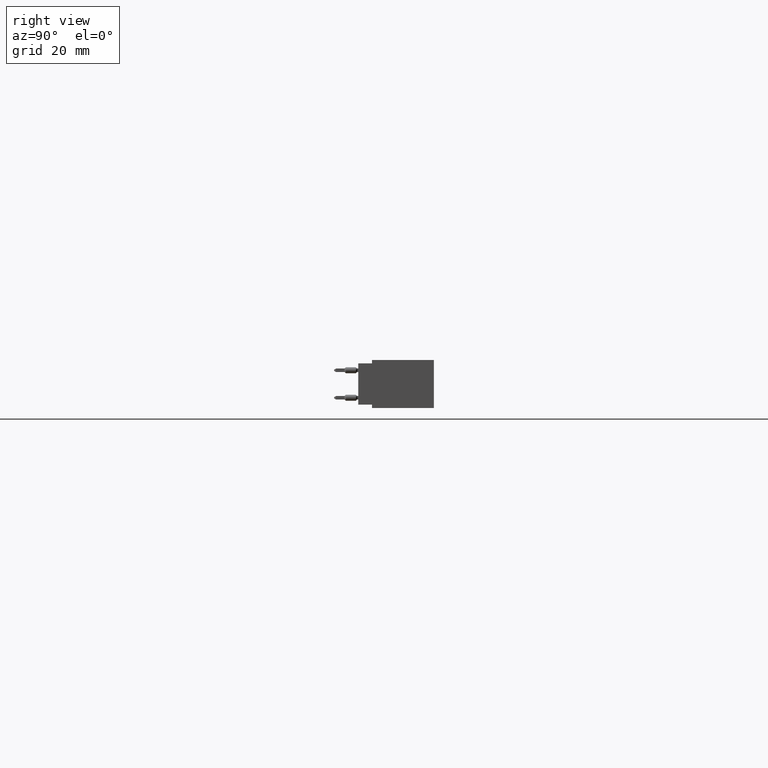
[diagram: clean part render]
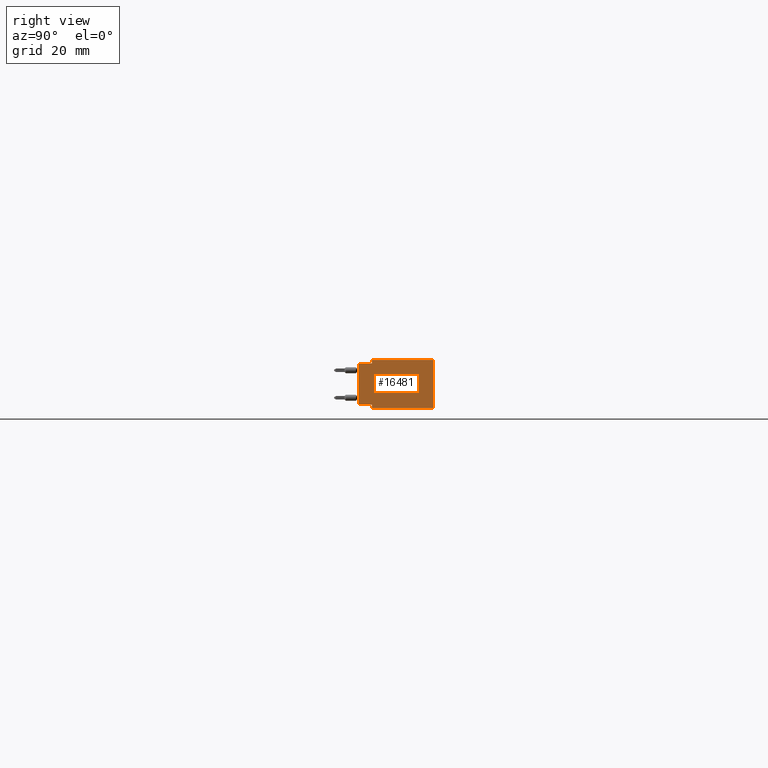
[diagram: same view with one face highlighted and labeled with its STEP entity id]
A machine part, right view. The second image highlights one B-rep face of the part: STEP entity #16481.
In plain terms, the highlighted planar face has unit normal (-1, 0, 0).
Its self-contained STEP definition (entity closure, byte-faithful):
#4804 = EDGE_LOOP ( 'NONE', ( #60344, #40155, #76434, #28553, #5832, #45412, #10247, #31235 ) ) ;
#4888 = LINE ( 'NONE', #33954, #71082 ) ;
#5583 = CARTESIAN_POINT ( 'NONE',  ( 5.259999999999999800, 0.1000000000000000100, 0.0000000000000000000 ) ) ;
#5832 = ORIENTED_EDGE ( 'NONE', *, *, #7810, .T. ) ;
#7810 = EDGE_CURVE ( 'NONE', #67738, #76758, #23892, .T. ) ;
#9353 = CARTESIAN_POINT ( 'NONE',  ( 5.259999999999999800, 0.1000000000000000100, -0.3249999999999999600 ) ) ;
#9378 = DIRECTION ( 'NONE',  ( 0.0000000000000000000, 0.0000000000000000000, 1.000000000000000000 ) ) ;
#9705 = DIRECTION ( 'NONE',  ( 0.0000000000000000000, 1.000000000000000000, 0.0000000000000000000 ) ) ;
#10247 = ORIENTED_EDGE ( 'NONE', *, *, #51084, .F. ) ;
#10763 = EDGE_CURVE ( 'NONE', #37661, #30340, #57341, .T. ) ;
#12805 = CARTESIAN_POINT ( 'NONE',  ( 5.259999999999999800, 0.1000000000000000100, -0.3499999999999999800 ) ) ;
#13959 = CARTESIAN_POINT ( 'NONE',  ( 5.259999999999999800, 0.5500000000000000400, 0.0000000000000000000 ) ) ;
#14625 = DIRECTION ( 'NONE',  ( 0.0000000000000000000, 0.0000000000000000000, -1.000000000000000000 ) ) ;
#15318 = LINE ( 'NONE', #22810, #79421 ) ;
#16442 = AXIS2_PLACEMENT_3D ( 'NONE', #34889, #47750, #9378 ) ;
#16481 = ADVANCED_FACE ( 'NONE', ( #55157 ), #41278, .F. ) ;
#16647 = DIRECTION ( 'NONE',  ( -0.0000000000000000000, -1.000000000000000000, -0.0000000000000000000 ) ) ;
#17403 = CARTESIAN_POINT ( 'NONE',  ( 5.259999999999999800, 0.5500000000000000400, 0.0000000000000000000 ) ) ;
#19252 = DIRECTION ( 'NONE',  ( -0.0000000000000000000, -0.0000000000000000000, -1.000000000000000000 ) ) ;
#22810 = CARTESIAN_POINT ( 'NONE',  ( 5.259999999999999800, 0.0000000000000000000, -0.02500000000000000500 ) ) ;
#23161 = VECTOR ( 'NONE', #80074, 39.37007874015748100 ) ;
#23892 = LINE ( 'NONE', #12805, #55896 ) ;
#24586 = LINE ( 'NONE', #17403, #39567 ) ;
#24833 = VERTEX_POINT ( 'NONE', #25029 ) ;
#25029 = CARTESIAN_POINT ( 'NONE',  ( 5.259999999999999800, 0.5500000000000000400, -0.3499999999999999800 ) ) ;
#25047 = CARTESIAN_POINT ( 'NONE',  ( 5.259999999999999800, 0.1000000000000000100, -0.02500000000000000500 ) ) ;
#25606 = LINE ( 'NONE', #38650, #57601 ) ;
#28553 = ORIENTED_EDGE ( 'NONE', *, *, #79953, .T. ) ;
#30340 = VERTEX_POINT ( 'NONE', #82720 ) ;
#31235 = ORIENTED_EDGE ( 'NONE', *, *, #32436, .T. ) ;
#32436 = EDGE_CURVE ( 'NONE', #52242, #56336, #24586, .T. ) ;
#33894 = CARTESIAN_POINT ( 'NONE',  ( 5.259999999999999800, 0.1000000000000000100, -0.3499999999999999800 ) ) ;
#33954 = CARTESIAN_POINT ( 'NONE',  ( 5.259999999999999800, 0.5500000000000000400, 0.0000000000000000000 ) ) ;
#34749 = VERTEX_POINT ( 'NONE', #25047 ) ;
#34889 = CARTESIAN_POINT ( 'NONE',  ( 5.259999999999999800, 0.5500000000000000400, 0.0000000000000000000 ) ) ;
#37607 = EDGE_CURVE ( 'NONE', #24833, #76758, #25606, .T. ) ;
#37661 = VERTEX_POINT ( 'NONE', #65004 ) ;
#38650 = CARTESIAN_POINT ( 'NONE',  ( 5.259999999999999800, 0.5500000000000000400, -0.3499999999999999800 ) ) ;
#38675 = CARTESIAN_POINT ( 'NONE',  ( 5.259999999999999800, 0.0000000000000000000, 0.0000000000000000000 ) ) ;
#39567 = VECTOR ( 'NONE', #68625, 39.37007874015748100 ) ;
#39703 = EDGE_CURVE ( 'NONE', #56336, #34749, #74261, .T. ) ;
#40155 = ORIENTED_EDGE ( 'NONE', *, *, #57449, .T. ) ;
#41278 = PLANE ( 'NONE',  #16442 ) ;
#41589 = CARTESIAN_POINT ( 'NONE',  ( 5.259999999999999800, 0.0000000000000000000, -0.3249999999999999600 ) ) ;
#44276 = LINE ( 'NONE', #41589, #59305 ) ;
#45113 = DIRECTION ( 'NONE',  ( 0.0000000000000000000, 0.0000000000000000000, -1.000000000000000000 ) ) ;
#45412 = ORIENTED_EDGE ( 'NONE', *, *, #37607, .F. ) ;
#47750 = DIRECTION ( 'NONE',  ( -1.000000000000000000, 0.0000000000000000000, 0.0000000000000000000 ) ) ;
#51084 = EDGE_CURVE ( 'NONE', #52242, #24833, #4888, .T. ) ;
#52242 = VERTEX_POINT ( 'NONE', #13959 ) ;
#55157 = FACE_OUTER_BOUND ( 'NONE', #4804, .T. ) ;
#55896 = VECTOR ( 'NONE', #19252, 39.37007874015748100 ) ;
#56336 = VERTEX_POINT ( 'NONE', #5583 ) ;
#57341 = LINE ( 'NONE', #38675, #76423 ) ;
#57449 = EDGE_CURVE ( 'NONE', #34749, #37661, #15318, .T. ) ;
#57601 = VECTOR ( 'NONE', #64168, 39.37007874015748100 ) ;
#59305 = VECTOR ( 'NONE', #9705, 39.37007874015748100 ) ;
#60344 = ORIENTED_EDGE ( 'NONE', *, *, #39703, .T. ) ;
#64168 = DIRECTION ( 'NONE',  ( -0.0000000000000000000, -1.000000000000000000, -0.0000000000000000000 ) ) ;
#65004 = CARTESIAN_POINT ( 'NONE',  ( 5.259999999999999800, 0.0000000000000000000, -0.02500000000000000500 ) ) ;
#67738 = VERTEX_POINT ( 'NONE', #9353 ) ;
#68625 = DIRECTION ( 'NONE',  ( -0.0000000000000000000, -1.000000000000000000, -0.0000000000000000000 ) ) ;
#71082 = VECTOR ( 'NONE', #14625, 39.37007874015748100 ) ;
#73639 = CARTESIAN_POINT ( 'NONE',  ( 5.259999999999999800, 0.1000000000000000100, 0.0000000000000000000 ) ) ;
#74261 = LINE ( 'NONE', #73639, #23161 ) ;
#76423 = VECTOR ( 'NONE', #45113, 39.37007874015748100 ) ;
#76434 = ORIENTED_EDGE ( 'NONE', *, *, #10763, .T. ) ;
#76758 = VERTEX_POINT ( 'NONE', #33894 ) ;
#79421 = VECTOR ( 'NONE', #16647, 39.37007874015748100 ) ;
#79953 = EDGE_CURVE ( 'NONE', #30340, #67738, #44276, .T. ) ;
#80074 = DIRECTION ( 'NONE',  ( 0.0000000000000000000, 0.0000000000000000000, -1.000000000000000000 ) ) ;
#82720 = CARTESIAN_POINT ( 'NONE',  ( 5.259999999999999800, 0.0000000000000000000, -0.3249999999999999600 ) ) ;